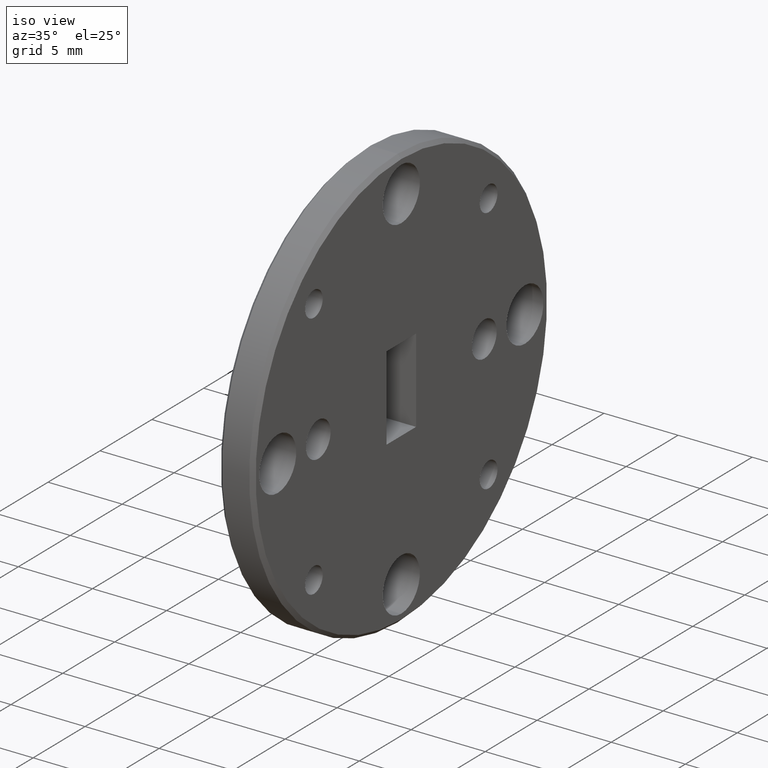
[diagram: clean part render]
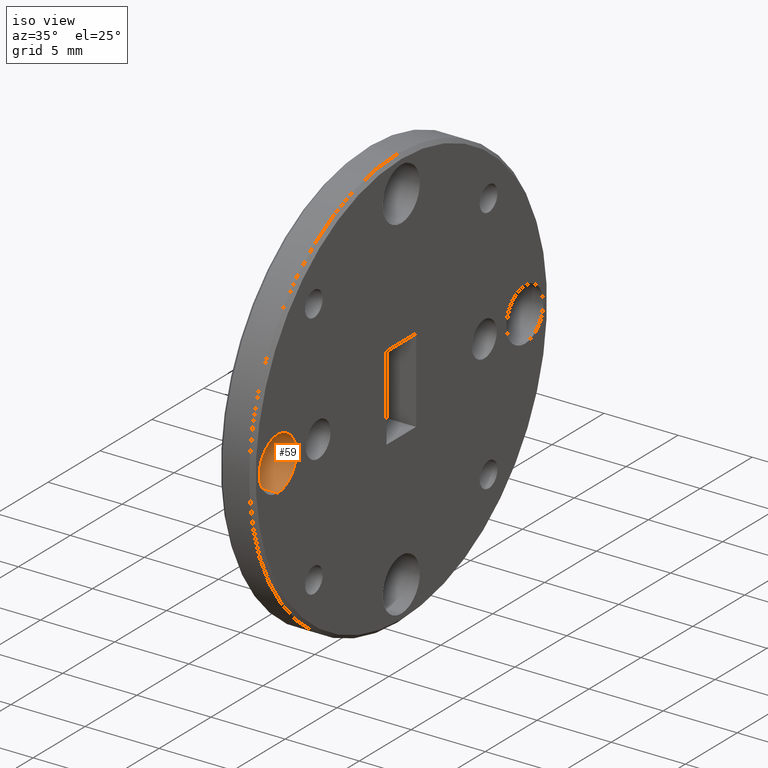
[diagram: same view with one face highlighted and labeled with its STEP entity id]
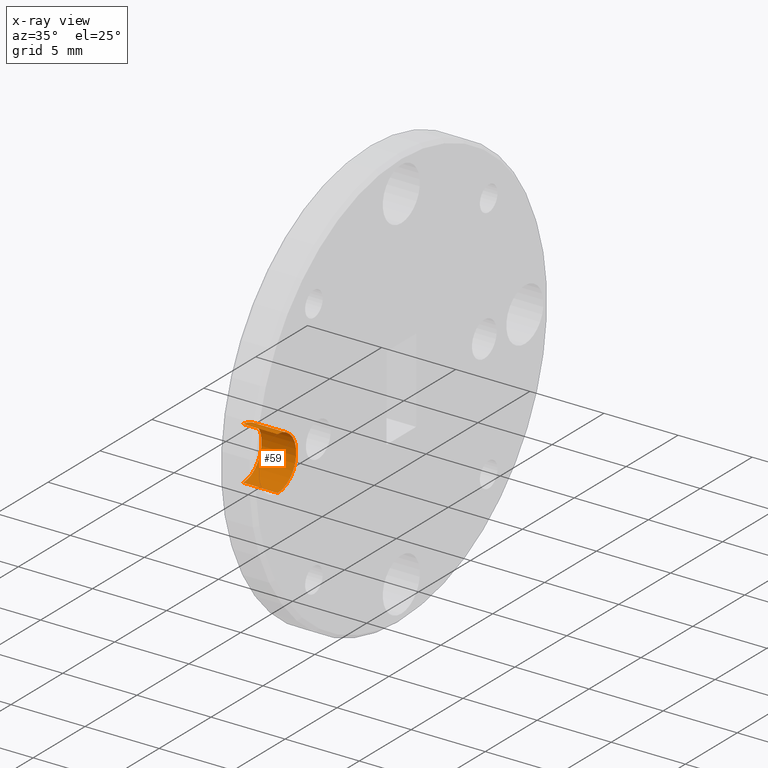
[diagram: x-ray of the same camera — body ghosted, the highlighted face saturated]
A machine part, iso view. The second image highlights one B-rep face of the part: STEP entity #59.
The next image is the same camera in x-ray: the body ghosted, the highlighted face saturated — about 0% of this face is hidden behind the body in this view.
In plain terms, the highlighted cylindrical surface (edge-blend (fillet) strip) has radius 1.786 mm, axis along (-1, -0, -0).
Its self-contained STEP definition (entity closure, byte-faithful):
#11 = DIRECTION ( 'NONE',  ( -1.000000000000000000, -0.0000000000000000000, -0.0000000000000000000 ) ) ;
#15 = VERTEX_POINT ( 'NONE', #1130 ) ;
#19 = EDGE_CURVE ( 'NONE', #1135, #15, #248, .T. ) ;
#59 = ADVANCED_FACE ( 'NONE', ( #490 ), #132, .F. ) ;
#69 = DIRECTION ( 'NONE',  ( 0.0000000000000000000, 0.0000000000000000000, 1.000000000000000000 ) ) ;
#102 = AXIS2_PLACEMENT_3D ( 'NONE', #786, #252, #165 ) ;
#132 = CYLINDRICAL_SURFACE ( 'NONE', #784, 0.07031499999999975300 ) ;
#148 = VECTOR ( 'NONE', #164, 39.37007874015748100 ) ;
#153 = EDGE_CURVE ( 'NONE', #365, #15, #1147, .T. ) ;
#164 = DIRECTION ( 'NONE',  ( -1.000000000000000000, -0.0000000000000000000, -0.0000000000000000000 ) ) ;
#165 = DIRECTION ( 'NONE',  ( 0.0000000000000000000, 0.0000000000000000000, 1.000000000000000000 ) ) ;
#192 = CARTESIAN_POINT ( 'NONE',  ( -5.262123598916295500E-017, -0.4687500000000000000, 0.07031499999999954500 ) ) ;
#248 = CIRCLE ( 'NONE', #102, 0.07031499999999954500 ) ;
#252 = DIRECTION ( 'NONE',  ( -1.000000000000000000, -0.0000000000000000000, -0.0000000000000000000 ) ) ;
#278 = CARTESIAN_POINT ( 'NONE',  ( 0.09200000000000004000, -0.4687500000000000000, 0.0000000000000000000 ) ) ;
#313 = VECTOR ( 'NONE', #11, 39.37007874015748100 ) ;
#338 = CIRCLE ( 'NONE', #1073, 0.07031499999999975300 ) ;
#355 = CARTESIAN_POINT ( 'NONE',  ( 0.0000000000000000000, -0.4687500000000000000, -0.07031499999999975300 ) ) ;
#365 = VERTEX_POINT ( 'NONE', #567 ) ;
#431 = CARTESIAN_POINT ( 'NONE',  ( 0.0000000000000000000, -0.4687500000000000000, 0.0000000000000000000 ) ) ;
#470 = ORIENTED_EDGE ( 'NONE', *, *, #523, .T. ) ;
#477 = DIRECTION ( 'NONE',  ( 1.000000000000000000, -0.0000000000000000000, -0.0000000000000000000 ) ) ;
#490 = FACE_OUTER_BOUND ( 'NONE', #685, .T. ) ;
#523 = EDGE_CURVE ( 'NONE', #365, #587, #338, .T. ) ;
#567 = CARTESIAN_POINT ( 'NONE',  ( 0.09200000000000004000, -0.4687500000000000000, -0.07031499999999975300 ) ) ;
#587 = VERTEX_POINT ( 'NONE', #937 ) ;
#613 = LINE ( 'NONE', #869, #148 ) ;
#656 = ORIENTED_EDGE ( 'NONE', *, *, #19, .T. ) ;
#685 = EDGE_LOOP ( 'NONE', ( #770, #470, #910, #656 ) ) ;
#770 = ORIENTED_EDGE ( 'NONE', *, *, #153, .F. ) ;
#784 = AXIS2_PLACEMENT_3D ( 'NONE', #431, #1048, #69 ) ;
#786 = CARTESIAN_POINT ( 'NONE',  ( -5.262123598916295500E-017, -0.4687500000000000000, 0.0000000000000000000 ) ) ;
#869 = CARTESIAN_POINT ( 'NONE',  ( 0.0000000000000000000, -0.4687500000000000000, 0.07031499999999975300 ) ) ;
#910 = ORIENTED_EDGE ( 'NONE', *, *, #991, .T. ) ;
#937 = CARTESIAN_POINT ( 'NONE',  ( 0.09200000000000004000, -0.4687500000000000000, 0.07031499999999975300 ) ) ;
#991 = EDGE_CURVE ( 'NONE', #587, #1135, #613, .T. ) ;
#1048 = DIRECTION ( 'NONE',  ( -1.000000000000000000, -0.0000000000000000000, -0.0000000000000000000 ) ) ;
#1073 = AXIS2_PLACEMENT_3D ( 'NONE', #278, #477, #1106 ) ;
#1106 = DIRECTION ( 'NONE',  ( 0.0000000000000000000, 0.0000000000000000000, -1.000000000000000000 ) ) ;
#1130 = CARTESIAN_POINT ( 'NONE',  ( -5.262123598916295500E-017, -0.4687500000000000000, -0.07031499999999954500 ) ) ;
#1135 = VERTEX_POINT ( 'NONE', #192 ) ;
#1147 = LINE ( 'NONE', #355, #313 ) ;